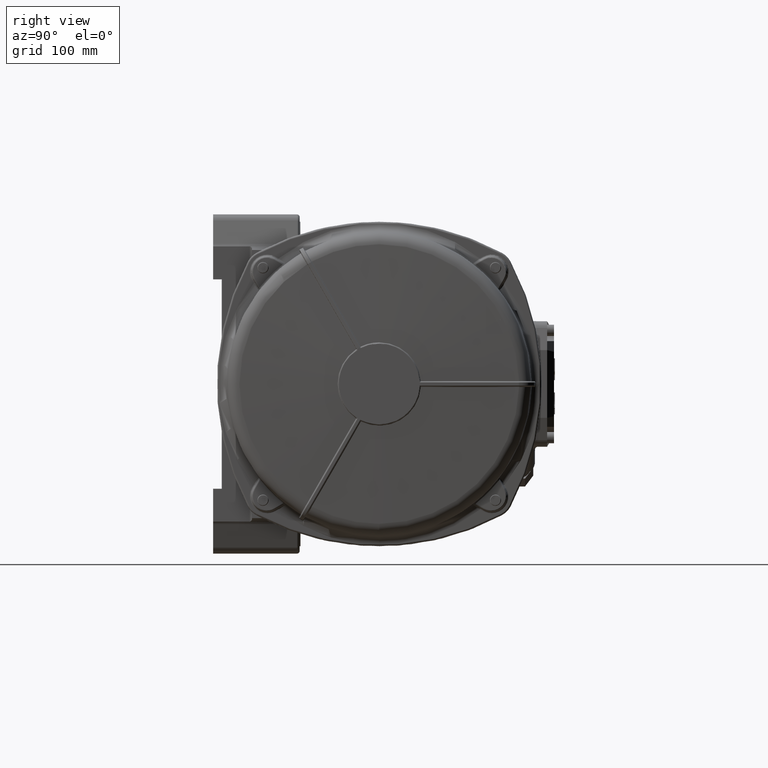
[diagram: clean part render]
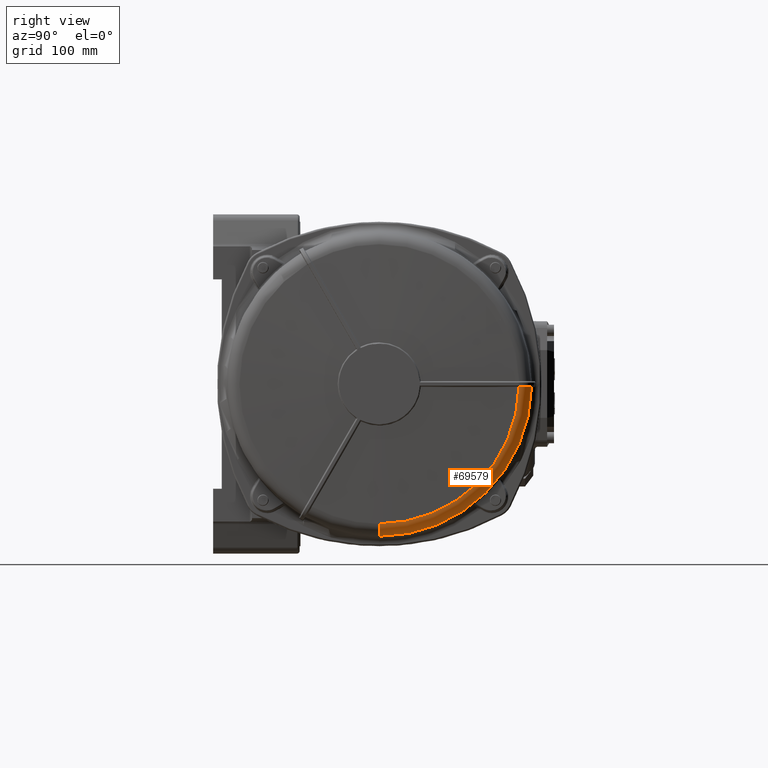
[diagram: same view with one face highlighted and labeled with its STEP entity id]
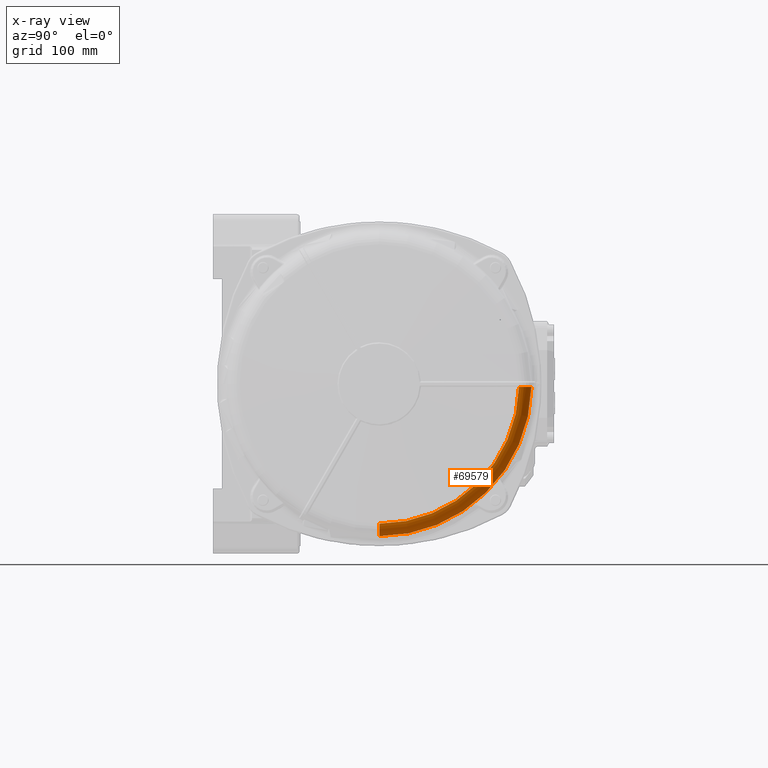
[diagram: x-ray of the same camera — body ghosted, the highlighted face saturated]
A machine part, right view. The second image highlights one B-rep face of the part: STEP entity #69579.
The next image is the same camera in x-ray: the body ghosted, the highlighted face saturated — about 0% of this face is hidden behind the body in this view.
In plain terms, the highlighted toroidal blend (fillet) surface has major radius 161 mm and minor (blend) radius 15 mm.
Its self-contained STEP definition (entity closure, byte-faithful):
#6215 = CARTESIAN_POINT ( 'NONE',  ( 294.7273494982050000, 367.9655876217494800, -3.480225988700564900 ) ) ;
#6448 = CIRCLE ( 'NONE', #6457, 176.0000000000000000 ) ;
#6457 = AXIS2_PLACEMENT_3D ( 'NONE', #6499, #6498, #6497 ) ;
#6497 = DIRECTION ( 'NONE',  ( 0.0000000000000000000, 9.462128050782584900E-016, -1.000000000000000000 ) ) ;
#6498 = DIRECTION ( 'NONE',  ( -1.000000000000000000, -0.0000000000000000000, -0.0000000000000000000 ) ) ;
#6499 = CARTESIAN_POINT ( 'NONE',  ( 294.7273494982050000, 192.0000000000000000, 0.0000000000000000000 ) ) ;
#6770 = DIRECTION ( 'NONE',  ( 0.0000000000000000000, 0.0000000000000000000, 1.000000000000000000 ) ) ;
#6771 = DIRECTION ( 'NONE',  ( 1.000000000000000000, -0.0000000000000000000, -0.0000000000000000000 ) ) ;
#6772 = CARTESIAN_POINT ( 'NONE',  ( 309.7182119034915200, 192.0000000000000000, 0.0000000000000000000 ) ) ;
#6773 = AXIS2_PLACEMENT_3D ( 'NONE', #6772, #6771, #6770 ) ;
#6796 = CIRCLE ( 'NONE', #6773, 161.5234924505374700 ) ;
#6990 = CARTESIAN_POINT ( 'NONE',  ( 309.7182119034915200, 353.4855842026914800, -3.499243937520135200 ) ) ;
#7475 = CARTESIAN_POINT ( 'NONE',  ( 299.4406644700350700, 367.2137791123158200, -3.481131250614454500 ) ) ;
#7476 = CARTESIAN_POINT ( 'NONE',  ( 298.5188165032788600, 367.4863567324831600, -3.480802037194674200 ) ) ;
#7477 = CARTESIAN_POINT ( 'NONE',  ( 298.0539946623378600, 367.5997591816649200, -3.480665466620194200 ) ) ;
#7478 = CARTESIAN_POINT ( 'NONE',  ( 296.6480716629459400, 367.8726936891411000, -3.480337175917347800 ) ) ;
#7479 = CARTESIAN_POINT ( 'NONE',  ( 295.6956211284135600, 367.9655876217496500, -3.480225988700564900 ) ) ;
#7480 = CARTESIAN_POINT ( 'NONE',  ( 294.7273494982050000, 367.9655876217494800, -3.480225988700564900 ) ) ;
#7482 = B_SPLINE_CURVE_WITH_KNOTS ( 'NONE', 3,
 ( #7480, #7479, #7478, #7477, #7476, #7475, #7541, #7540, #7539, #7538, #7537, #7536, #7535, #7534, #7533, #7532, #7531, #7530, #7529, #7528, #7527, #7526, #7525, #7524 ),
 .UNSPECIFIED., .F., .F.,
 ( 4, 2, 2, 2, 2, 2, 2, 2, 2, 2, 2, 4 ),
 ( 0.0000000000000000000, 0.002863580315558706500, 0.004295370473338059500, 0.005727160631117412900, 0.008590740946676118900, 0.01002253110445551800, 0.01145432126223491800, 0.01431790157779371000, 0.01574969173557310600, 0.01718148189335250200, 0.02004506220891136300, 0.02290864252447022100 ),
 .UNSPECIFIED. ) ;
#7494 = DIRECTION ( 'NONE',  ( 0.0000000000000000000, 0.0000000000000000000, -1.000000000000000000 ) ) ;
#7513 = FACE_OUTER_BOUND ( 'NONE', #69569, .T. ) ;
#7514 = DIRECTION ( 'NONE',  ( 1.000000000000000000, 0.0000000000000000000, 0.0000000000000000000 ) ) ;
#7519 = TOROIDAL_SURFACE ( 'NONE', #7542, 161.0000000000000000, 15.00000000000000000 ) ;
#7524 = CARTESIAN_POINT ( 'NONE',  ( 309.7182119034915200, 353.4855842026914800, -3.499243937520135200 ) ) ;
#7525 = CARTESIAN_POINT ( 'NONE',  ( 309.6844289452560000, 354.4532588212143800, -3.497851558441851700 ) ) ;
#7526 = CARTESIAN_POINT ( 'NONE',  ( 309.5569913838744500, 355.4154938804177800, -3.496493911378895100 ) ) ;
#7527 = CARTESIAN_POINT ( 'NONE',  ( 309.1193238458360500, 357.2996745084214500, -3.493882691586724000 ) ) ;
#7528 = CARTESIAN_POINT ( 'NONE',  ( 308.8136890420522000, 358.2060735109085400, -3.492650336312952400 ) ) ;
#7529 = CARTESIAN_POINT ( 'NONE',  ( 308.2298968647249900, 359.5141340473894000, -3.490899769634412800 ) ) ;
#7530 = CARTESIAN_POINT ( 'NONE',  ( 308.0142621381588700, 359.9415039814076600, -3.490332678416671300 ) ) ;
#7531 = CARTESIAN_POINT ( 'NONE',  ( 307.5399650038692100, 360.7785514926956100, -3.489230521287479900 ) ) ;
#7532 = CARTESIAN_POINT ( 'NONE',  ( 307.2802315370435100, 361.1893576155557100, -3.488694032453462800 ) ) ;
#7533 = CARTESIAN_POINT ( 'NONE',  ( 306.4521893682503400, 362.3691670860730500, -3.487164258071100400 ) ) ;
#7534 = CARTESIAN_POINT ( 'NONE',  ( 305.8313809806081700, 363.0944743318831300, -3.486238734717088200 ) ) ;
#7535 = CARTESIAN_POINT ( 'NONE',  ( 304.7981556492461600, 364.0916172081309100, -3.484980360954748900 ) ) ;
#7536 = CARTESIAN_POINT ( 'NONE',  ( 304.4362239671124300, 364.4090829060527900, -3.484582310595676800 ) ) ;
#7537 = CARTESIAN_POINT ( 'NONE',  ( 303.6785457093323000, 365.0110958820477000, -3.483831433467983200 ) ) ;
#7538 = CARTESIAN_POINT ( 'NONE',  ( 303.2882294450747600, 365.2913930456510300, -3.483483893507169700 ) ) ;
#7539 = CARTESIAN_POINT ( 'NONE',  ( 302.0839986645521500, 366.0722305691701300, -3.482519966767755500 ) ) ;
#7540 = CARTESIAN_POINT ( 'NONE',  ( 301.2370992790542900, 366.5132530819163300, -3.481981512397615200 ) ) ;
#7541 = CARTESIAN_POINT ( 'NONE',  ( 299.8996109195300600, 367.0536408263636200, -3.481325066275387800 ) ) ;
#7542 = AXIS2_PLACEMENT_3D ( 'NONE', #7581, #7514, #7494 ) ;
#7581 = CARTESIAN_POINT ( 'NONE',  ( 294.7273494982050000, 192.0000000000000000, 0.0000000000000000000 ) ) ;
#23684 = EDGE_CURVE ( 'NONE', #23688, #23687, #43626, .T. ) ;
#23687 = VERTEX_POINT ( 'NONE', #43610 ) ;
#23688 = VERTEX_POINT ( 'NONE', #43616 ) ;
#43582 = AXIS2_PLACEMENT_3D ( 'NONE', #43621, #43609, #43608 ) ;
#43608 = DIRECTION ( 'NONE',  ( 0.0000000000000000000, 0.0000000000000000000, -1.000000000000000000 ) ) ;
#43609 = DIRECTION ( 'NONE',  ( 0.0000000000000000000, -1.000000000000000000, 0.0000000000000000000 ) ) ;
#43610 = CARTESIAN_POINT ( 'NONE',  ( 309.7182119034915200, 192.0000000000000000, -161.5234924505374700 ) ) ;
#43616 = CARTESIAN_POINT ( 'NONE',  ( 294.7273494982050000, 192.0000000000000000, -176.0000000000000000 ) ) ;
#43621 = CARTESIAN_POINT ( 'NONE',  ( 294.7273494982050000, 192.0000000000000000, -161.0000000000000000 ) ) ;
#43626 = CIRCLE ( 'NONE', #43582, 14.99999999999998600 ) ;
#66790 = VERTEX_POINT ( 'NONE', #6215 ) ;
#67319 = EDGE_CURVE ( 'NONE', #66790, #23688, #6448, .T. ) ;
#68657 = EDGE_CURVE ( 'NONE', #23687, #68756, #6796, .T. ) ;
#68756 = VERTEX_POINT ( 'NONE', #6990 ) ;
#69499 = EDGE_CURVE ( 'NONE', #66790, #68756, #7482, .T. ) ;
#69562 = ORIENTED_EDGE ( 'NONE', *, *, #67319, .F. ) ;
#69569 = EDGE_LOOP ( 'NONE', ( #69615, #69562, #69617, #69682 ) ) ;
#69579 = ADVANCED_FACE ( 'NONE', ( #7513 ), #7519, .T. ) ;
#69615 = ORIENTED_EDGE ( 'NONE', *, *, #23684, .F. ) ;
#69617 = ORIENTED_EDGE ( 'NONE', *, *, #69499, .T. ) ;
#69682 = ORIENTED_EDGE ( 'NONE', *, *, #68657, .F. ) ;